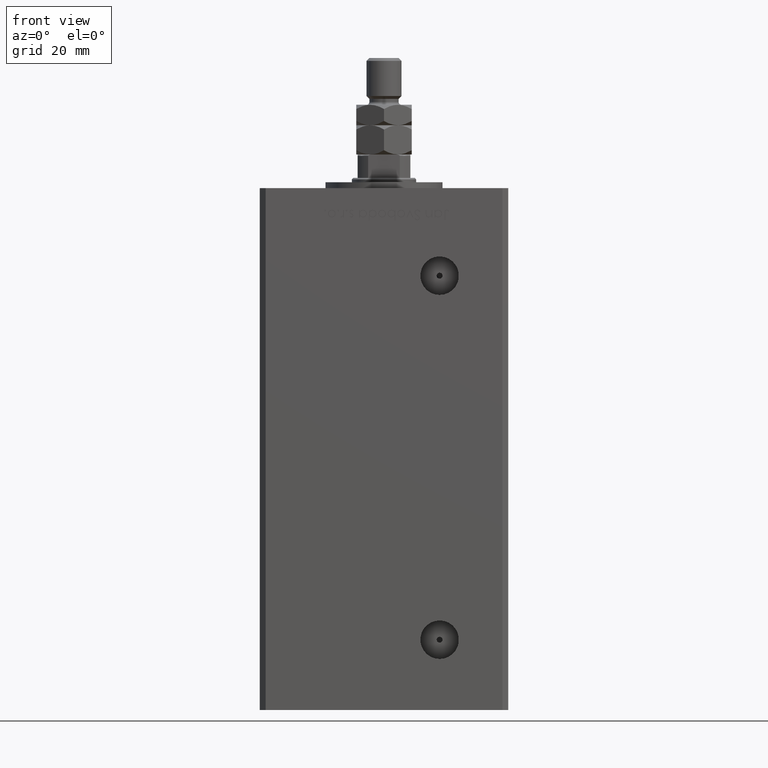
[diagram: clean part render]
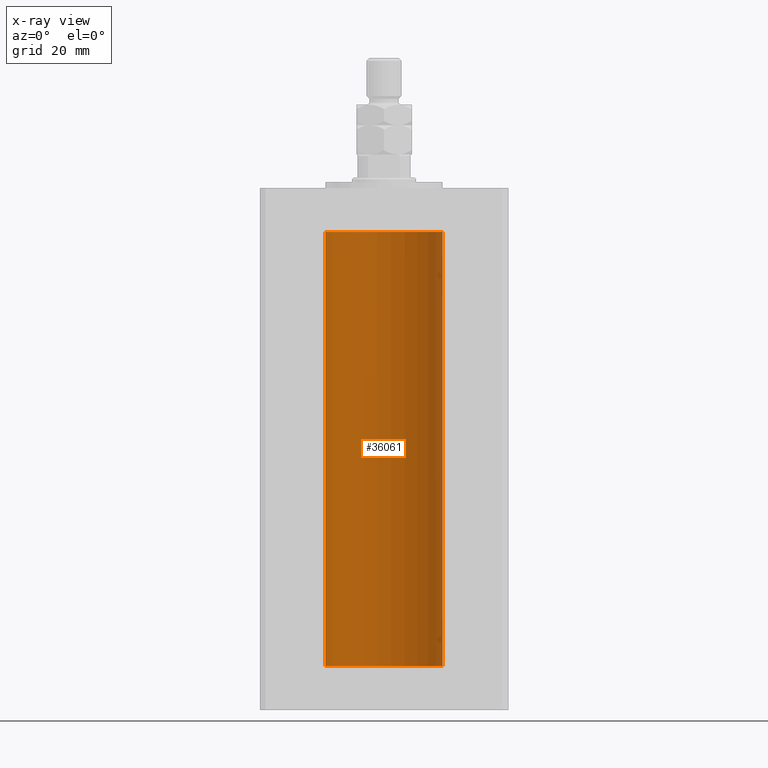
[diagram: x-ray — body ghosted, one internal face saturated and labeled with its STEP entity id]
A machine part, front view, then the same camera in x-ray: the body is ghosted and one INTERNAL B-rep face — a face not visible from any outside direction — is saturated and labeled: STEP entity #36061.
In plain terms, the highlighted cylindrical surface (partial cylindrical patch) has radius 20 mm, axis along (-0, -0, -1).
Its self-contained STEP definition (entity closure, byte-faithful):
#566 = LINE ( 'NONE', #16861, #14369 ) ;
#1449 = CARTESIAN_POINT ( 'NONE',  ( 0.000000000000000000, 0.000000000000000000, 148.5000000000000000 ) ) ;
#2826 = AXIS2_PLACEMENT_3D ( 'NONE', #49849, #29191, #41683 ) ;
#2870 = VERTEX_POINT ( 'NONE', #7105 ) ;
#3080 = CARTESIAN_POINT ( 'NONE',  ( 20.00000000000000000, 2.449293598294706513E-15, 148.5000000000000000 ) ) ;
#4696 = VERTEX_POINT ( 'NONE', #34648 ) ;
#6716 = CYLINDRICAL_SURFACE ( 'NONE', #39413, 20.00000000000000000 ) ;
#7105 = CARTESIAN_POINT ( 'NONE',  ( -20.00000000000000000, 0.000000000000000000, 148.5000000000000000 ) ) ;
#10210 = ORIENTED_EDGE ( 'NONE', *, *, #39553, .T. ) ;
#12900 = CARTESIAN_POINT ( 'NONE',  ( 20.00000000000000000, 2.449293598294706513E-15, 0.000000000000000000 ) ) ;
#14132 = VECTOR ( 'NONE', #51018, 1000.000000000000000 ) ;
#14369 = VECTOR ( 'NONE', #25011, 1000.000000000000000 ) ;
#15371 = EDGE_LOOP ( 'NONE', ( #31104, #42377, #10210, #52199 ) ) ;
#16861 = CARTESIAN_POINT ( 'NONE',  ( -20.00000000000000000, 0.000000000000000000, 148.5000000000000000 ) ) ;
#18016 = DIRECTION ( 'NONE',  ( 1.000000000000000000, 0.000000000000000000, 0.000000000000000000 ) ) ;
#20002 = DIRECTION ( 'NONE',  ( -0.000000000000000000, -0.000000000000000000, -1.000000000000000000 ) ) ;
#20154 = CIRCLE ( 'NONE', #2826, 20.00000000000000000 ) ;
#22742 = CIRCLE ( 'NONE', #46220, 20.00000000000000000 ) ;
#25011 = DIRECTION ( 'NONE',  ( -0.000000000000000000, -0.000000000000000000, -1.000000000000000000 ) ) ;
#26250 = CARTESIAN_POINT ( 'NONE',  ( 20.00000000000000000, 2.449293598294706513E-15, 148.5000000000000000 ) ) ;
#26370 = EDGE_CURVE ( 'NONE', #39223, #4696, #20154, .T. ) ;
#27221 = EDGE_CURVE ( 'NONE', #37286, #2870, #22742, .T. ) ;
#28344 = EDGE_CURVE ( 'NONE', #37286, #39223, #39030, .T. ) ;
#29191 = DIRECTION ( 'NONE',  ( -0.000000000000000000, 0.000000000000000000, 1.000000000000000000 ) ) ;
#31104 = ORIENTED_EDGE ( 'NONE', *, *, #28344, .F. ) ;
#34648 = CARTESIAN_POINT ( 'NONE',  ( -20.00000000000000000, 0.000000000000000000, 0.000000000000000000 ) ) ;
#36061 = ADVANCED_FACE ( 'NONE', ( #36075 ), #6716, .F. ) ;
#36075 = FACE_OUTER_BOUND ( 'NONE', #15371, .T. ) ;
#37286 = VERTEX_POINT ( 'NONE', #3080 ) ;
#39030 = LINE ( 'NONE', #26250, #14132 ) ;
#39223 = VERTEX_POINT ( 'NONE', #12900 ) ;
#39413 = AXIS2_PLACEMENT_3D ( 'NONE', #53198, #20002, #52926 ) ;
#39553 = EDGE_CURVE ( 'NONE', #2870, #4696, #566, .T. ) ;
#41683 = DIRECTION ( 'NONE',  ( 1.000000000000000000, 0.000000000000000000, 0.000000000000000000 ) ) ;
#42377 = ORIENTED_EDGE ( 'NONE', *, *, #27221, .T. ) ;
#46220 = AXIS2_PLACEMENT_3D ( 'NONE', #1449, #50674, #18016 ) ;
#49849 = CARTESIAN_POINT ( 'NONE',  ( 0.000000000000000000, 0.000000000000000000, 0.000000000000000000 ) ) ;
#50674 = DIRECTION ( 'NONE',  ( -0.000000000000000000, 0.000000000000000000, 1.000000000000000000 ) ) ;
#51018 = DIRECTION ( 'NONE',  ( -0.000000000000000000, -0.000000000000000000, -1.000000000000000000 ) ) ;
#52199 = ORIENTED_EDGE ( 'NONE', *, *, #26370, .F. ) ;
#52926 = DIRECTION ( 'NONE',  ( -1.000000000000000000, 0.000000000000000000, 0.000000000000000000 ) ) ;
#53198 = CARTESIAN_POINT ( 'NONE',  ( 0.000000000000000000, 0.000000000000000000, 148.5000000000000000 ) ) ;